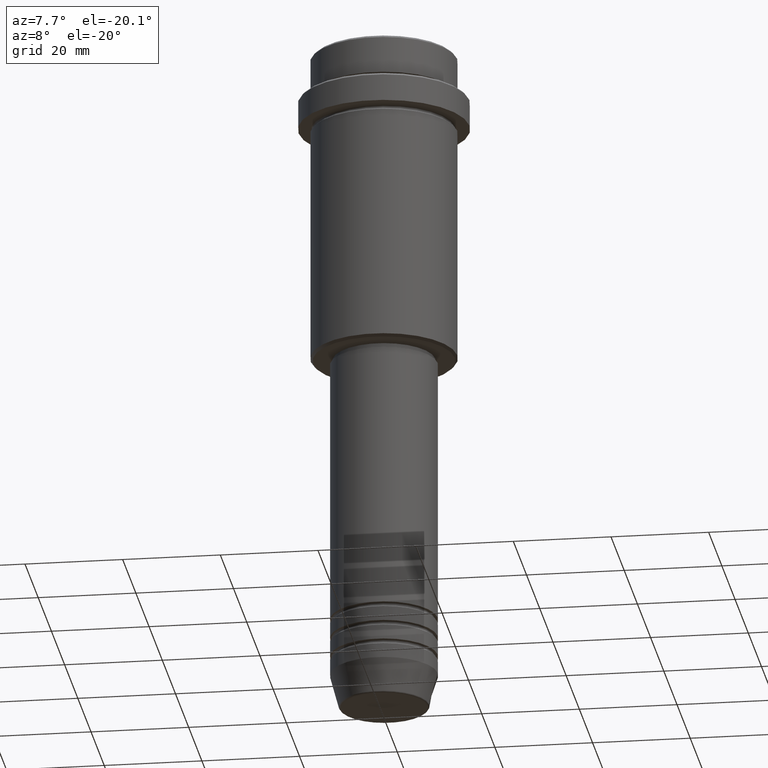
[diagram: clean part render]
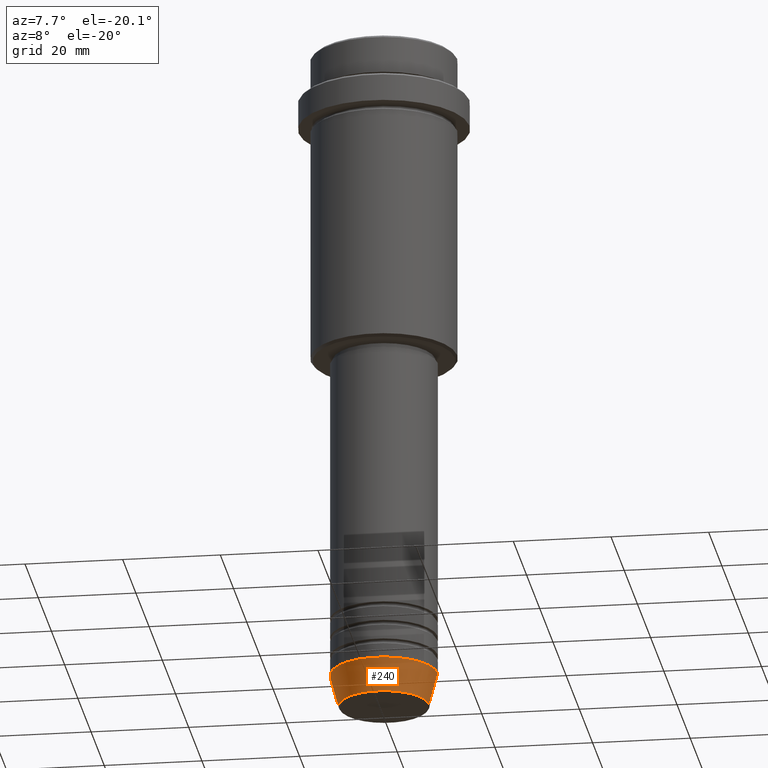
[diagram: same view with one face highlighted and labeled with its STEP entity id]
A machine part, auxiliary view. The second image highlights one B-rep face of the part: STEP entity #240.
In plain terms, the highlighted conical surface has half-angle 15 deg.
Its self-contained STEP definition (entity closure, byte-faithful):
#17 = DIRECTION ( 'NONE',  ( 0.2588190451025213501, 0.000000000000000000, 0.9659258262890680902 ) ) ;
#49 = CARTESIAN_POINT ( 'NONE',  ( -11.00000000000000000, 1.347111479062088405E-15, -133.0000000000000000 ) ) ;
#114 = LINE ( 'NONE', #1199, #884 ) ;
#129 = ORIENTED_EDGE ( 'NONE', *, *, #757, .F. ) ;
#185 = DIRECTION ( 'NONE',  ( -0.2588190451025213501, 3.169619151431772337E-17, 0.9659258262890680902 ) ) ;
#198 = DIRECTION ( 'NONE',  ( 1.000000000000000000, 0.000000000000000000, 0.000000000000000000 ) ) ;
#199 = CARTESIAN_POINT ( 'NONE',  ( 0.000000000000000000, 0.000000000000000000, -139.6294095225512706 ) ) ;
#227 = DIRECTION ( 'NONE',  ( 1.000000000000000000, 0.000000000000000000, 0.000000000000000000 ) ) ;
#232 = CARTESIAN_POINT ( 'NONE',  ( 11.00000000000000000, 0.000000000000000000, -133.0000000000000000 ) ) ;
#240 = ADVANCED_FACE ( 'NONE', ( #836 ), #241, .T. ) ;
#241 = CONICAL_SURFACE ( 'NONE', #1093, 11.00000000000000000, 0.2617993877991500740 ) ;
#261 = CIRCLE ( 'NONE', #1008, 9.223655072137189492 ) ;
#348 = EDGE_LOOP ( 'NONE', ( #514, #1345, #736, #129 ) ) ;
#496 = VECTOR ( 'NONE', #185, 1000.000000000000000 ) ;
#514 = ORIENTED_EDGE ( 'NONE', *, *, #800, .F. ) ;
#548 = CARTESIAN_POINT ( 'NONE',  ( 0.000000000000000000, 0.000000000000000000, -133.0000000000000000 ) ) ;
#553 = CARTESIAN_POINT ( 'NONE',  ( 9.223655072137189492, 0.000000000000000000, -139.6294095225512706 ) ) ;
#564 = VERTEX_POINT ( 'NONE', #1052 ) ;
#583 = VERTEX_POINT ( 'NONE', #553 ) ;
#624 = CARTESIAN_POINT ( 'NONE',  ( -11.00000000000000000, 1.347111479062088405E-15, -133.0000000000000000 ) ) ;
#649 = DIRECTION ( 'NONE',  ( 1.000000000000000000, 0.000000000000000000, 0.000000000000000000 ) ) ;
#736 = ORIENTED_EDGE ( 'NONE', *, *, #1193, .T. ) ;
#747 = CARTESIAN_POINT ( 'NONE',  ( 0.000000000000000000, 0.000000000000000000, -133.0000000000000000 ) ) ;
#757 = EDGE_CURVE ( 'NONE', #1302, #1269, #1279, .T. ) ;
#800 = EDGE_CURVE ( 'NONE', #564, #1302, #1154, .T. ) ;
#836 = FACE_OUTER_BOUND ( 'NONE', #348, .T. ) ;
#884 = VECTOR ( 'NONE', #17, 1000.000000000000000 ) ;
#1008 = AXIS2_PLACEMENT_3D ( 'NONE', #199, #1398, #649 ) ;
#1052 = CARTESIAN_POINT ( 'NONE',  ( -9.223655072137189492, 1.238341722557647202E-15, -139.6294095225512706 ) ) ;
#1093 = AXIS2_PLACEMENT_3D ( 'NONE', #548, #1206, #227 ) ;
#1148 = EDGE_CURVE ( 'NONE', #564, #583, #261, .T. ) ;
#1154 = LINE ( 'NONE', #624, #496 ) ;
#1193 = EDGE_CURVE ( 'NONE', #583, #1269, #114, .T. ) ;
#1199 = CARTESIAN_POINT ( 'NONE',  ( 11.00000000000000000, 0.000000000000000000, -133.0000000000000000 ) ) ;
#1206 = DIRECTION ( 'NONE',  ( -0.000000000000000000, -0.000000000000000000, 1.000000000000000000 ) ) ;
#1269 = VERTEX_POINT ( 'NONE', #232 ) ;
#1279 = CIRCLE ( 'NONE', #1337, 11.00000000000000000 ) ;
#1302 = VERTEX_POINT ( 'NONE', #49 ) ;
#1337 = AXIS2_PLACEMENT_3D ( 'NONE', #747, #1397, #198 ) ;
#1345 = ORIENTED_EDGE ( 'NONE', *, *, #1148, .T. ) ;
#1397 = DIRECTION ( 'NONE',  ( -0.000000000000000000, -0.000000000000000000, 1.000000000000000000 ) ) ;
#1398 = DIRECTION ( 'NONE',  ( -0.000000000000000000, -0.000000000000000000, 1.000000000000000000 ) ) ;